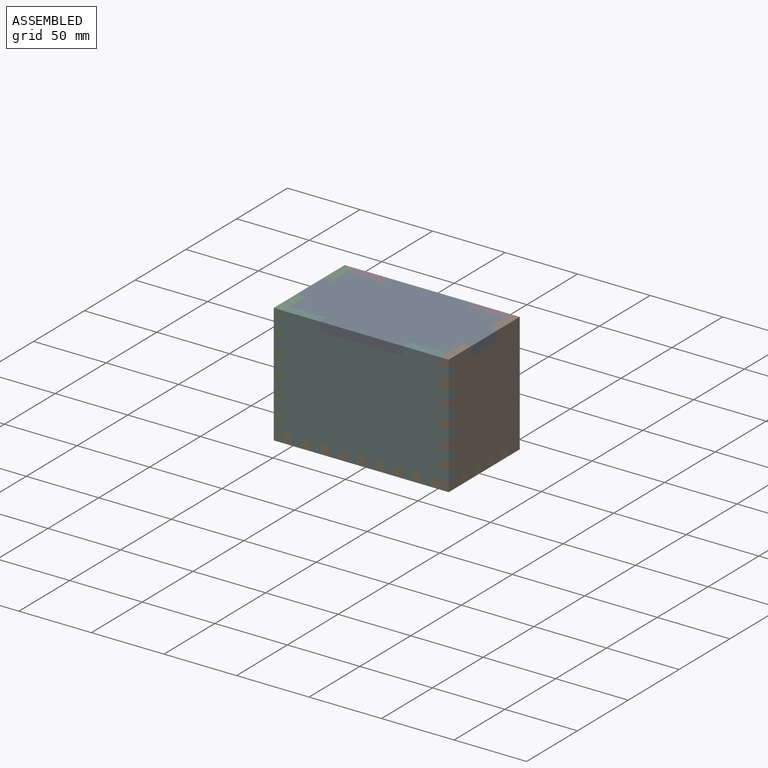
[diagram: assembled view]
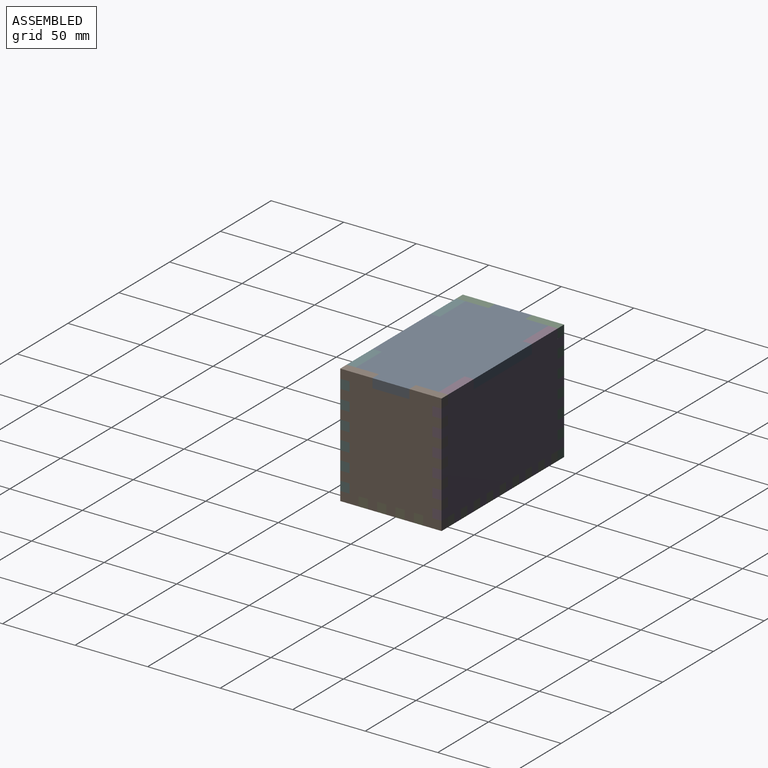
[diagram: assembled view, second angle]
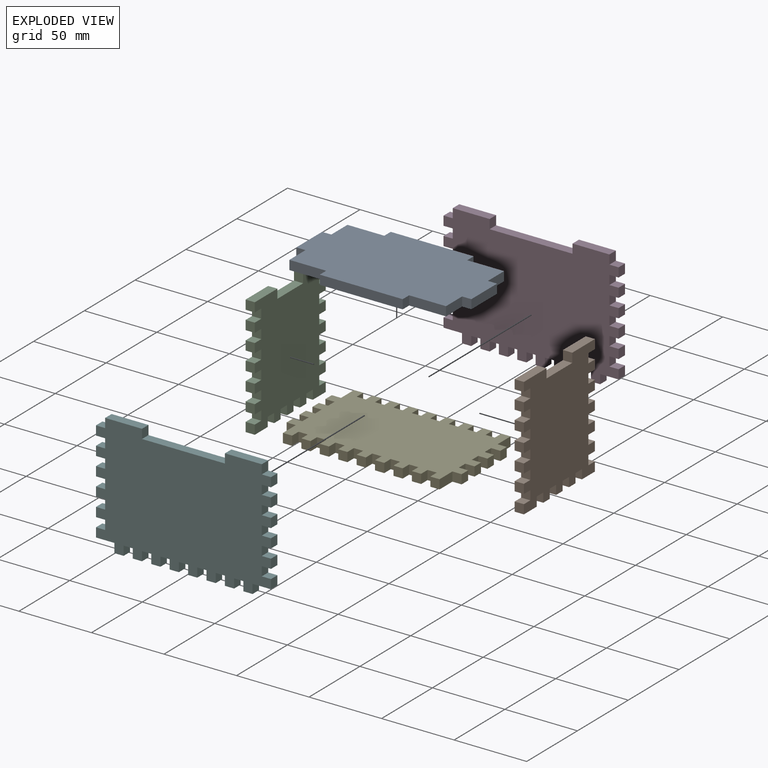
[diagram: exploded view]
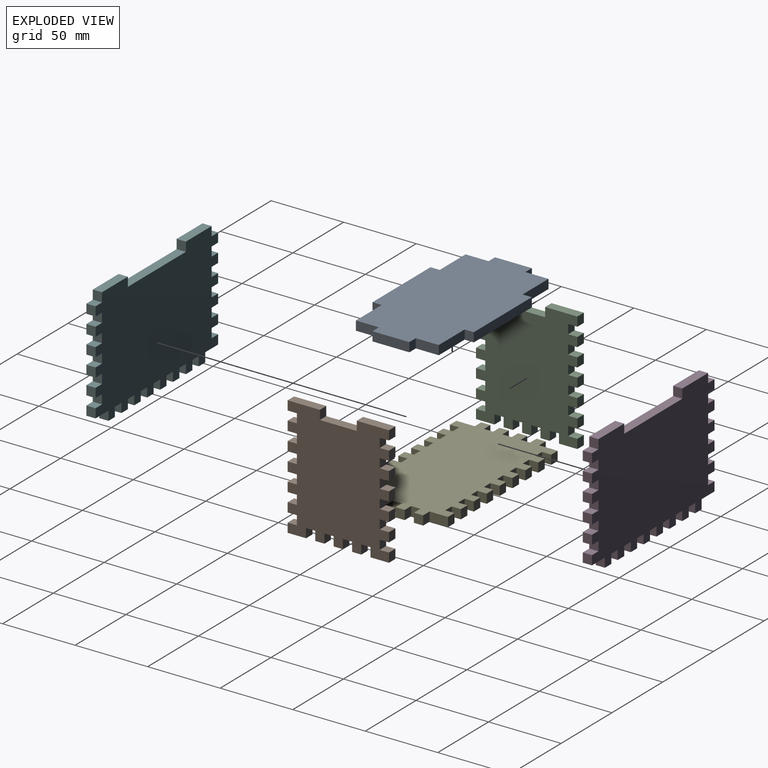
[diagram: exploded view, second angle]
ASSEMBLY  parts=6 mates=5
PART A: 22 faces, bbox 120.7x69.9x6.4 mm
  f0: plane 6.35x6.35mm, normal (-1,0,0), area 40.3mm2, adj f1,f19,f20,f21
  f1: plane 57.15x6.35mm, normal (0,-1,0), area 362.9mm2, adj f0,f2,f20,f21
  f2: plane 6.35x6.35mm, normal (1,0,0), area 40.3mm2, adj f1,f3,f20,f21
  f3: plane 25.4x6.35mm, normal (0,-1,0), area 161.3mm2, adj f2,f4,f20,f21
  f4: plane 15.88x6.35mm, normal (1,0,0), area 100.8mm2, adj f3,f5,f20,f21
  f5: plane 6.35x6.35mm, normal (0,-1,0), area 40.3mm2, adj f4,f6,f20,f21
  f6: plane 25.4x6.35mm, normal (1,0,0), area 161.3mm2, adj f5,f7,f20,f21
  f7: plane 6.35x6.35mm, normal (0,1,0), area 40.3mm2, adj f6,f8,f20,f21
  f8: plane 15.88x6.35mm, normal (1,0,0), area 100.8mm2, adj f7,f9,f20,f21
  f9: plane 25.4x6.35mm, normal (0,1,0), area 161.3mm2, adj f8,f10,f20,f21
  f10: plane 6.35x6.35mm, normal (1,0,0), area 40.3mm2, adj f9,f11,f20,f21
  f11: plane 57.15x6.35mm, normal (0,1,0), area 362.9mm2, adj f10,f12,f20,f21
  f12: plane 6.35x6.35mm, normal (-1,0,0), area 40.3mm2, adj f11,f13,f20,f21
  f13: plane 25.4x6.35mm, normal (0,1,0), area 161.3mm2, adj f12,f14,f20,f21
  f14: plane 15.88x6.35mm, normal (-1,0,0), area 100.8mm2, adj f13,f15,f20,f21
  f15: plane 6.35x6.35mm, normal (0,1,0), area 40.3mm2, adj f14,f16,f20,f21
  f16: plane 25.4x6.35mm, normal (-1,0,0), area 161.3mm2, adj f15,f17,f20,f21
  f17: plane 6.35x6.35mm, normal (0,-1,0), area 40.3mm2, adj f16,f18,f20,f21
  f18: plane 15.88x6.35mm, normal (-1,0,0), area 100.8mm2, adj f17,f19,f20,f21
  f19: plane 25.4x6.35mm, normal (0,-1,0), area 161.3mm2, adj f0,f18,f20,f21
  f20: plane 120.65x69.85mm, normal (0,0,1), area 7217.7mm2, adj f0,f1,f2,f3,f4,f5,f6,f7
  f21: plane 120.65x69.85mm, normal (0,0,-1), area 7217.7mm2, adj f0,f1,f2,f3,f4,f5,f6,f7
PART B: 74 faces, bbox 82.6x69.9x6.4 mm
  f0: plane 6.35x6.35mm, normal (0,-1,0), area 40.3mm2, adj f17,f18,f63,f70
  f1: plane 6.35x6.35mm, normal (0,-1,0), area 40.3mm2, adj f17,f18,f57,f62
  f2: plane 6.35x6.35mm, normal (0,-1,0), area 40.3mm2, adj f17,f18,f51,f56
  f3: plane 6.35x6.35mm, normal (0,-1,0), area 40.3mm2, adj f17,f18,f30,f50
  f4: plane 6.35x6.35mm, normal (0,-1,0), area 40.3mm2, adj f17,f18,f22,f38
  f5: plane 6.35x6.35mm, normal (0,-1,0), area 40.3mm2, adj f17,f18,f29,f39
  f6: plane 6.35x6.35mm, normal (1,0,0), area 40.3mm2, adj f17,f18,f37,f47
  f7: plane 6.35x6.35mm, normal (1,0,0), area 40.3mm2, adj f17,f18,f34,f35
  f8: plane 6.35x6.35mm, normal (1,0,0), area 40.3mm2, adj f17,f18,f25,f32
  f9: plane 12.7x6.35mm, normal (1,0,0), area 80.6mm2, adj f17,f18,f21,f23
  f10: plane 6.35x6.35mm, normal (0,1,0), area 40.3mm2, adj f17,f18,f65,f72
  f11: plane 6.35x6.35mm, normal (0,1,0), area 40.3mm2, adj f17,f18,f59,f66
  f12: plane 6.35x6.35mm, normal (0,1,0), area 40.3mm2, adj f17,f18,f53,f60
  f13: plane 6.35x6.35mm, normal (0,1,0), area 40.3mm2, adj f17,f18,f26,f54
  f14: plane 6.35x6.35mm, normal (0,1,0), area 40.3mm2, adj f16,f17,f18,f42
  f15: plane 6.35x6.35mm, normal (0,1,0), area 40.3mm2, adj f17,f18,f27,f41
  f16: plane 22.23x6.35mm, normal (-1,0,0), area 141.1mm2, adj f14,f17,f18,f44
  f17: plane 82.55x69.85mm, normal (0,0,1), area 4959.7mm2, adj f0,f1,f2,f3,f4,f5,f6,f7
  f18: plane 82.55x69.85mm, normal (0,0,-1), area 4959.7mm2, adj f0,f1,f2,f3,f4,f5,f6,f7
  f19: plane 6.35x6.35mm, normal (0,-1,0), area 40.3mm2, adj f17,f18,f20,f68
  f20: plane 12.7x6.35mm, normal (1,0,0), area 80.6mm2, adj f17,f18,f19,f49
  f21: plane 6.35x6.35mm, normal (0,1,0), area 40.3mm2, adj f9,f17,f18,f71
  f22: plane 22.23x6.35mm, normal (-1,0,0), area 141.1mm2, adj f4,f17,f18,f45
  f23: plane 6.35x6.35mm, normal (0,-1,0), area 40.3mm2, adj f9,f17,f18,f24
  f24: plane 6.35x6.35mm, normal (1,0,0), area 40.3mm2, adj f17,f18,f23,f25
  f25: plane 6.35x6.35mm, normal (0,1,0), area 40.3mm2, adj f8,f17,f18,f24
  f26: plane 6.35x6.35mm, normal (-1,0,0), area 40.3mm2, adj f13,f17,f18,f28
  f27: plane 6.35x6.35mm, normal (1,0,0), area 40.3mm2, adj f15,f17,f18,f28
  f28: plane 6.35x6.35mm, normal (0,1,0), area 40.3mm2, adj f17,f18,f26,f27
  f29: plane 6.35x6.35mm, normal (1,0,0), area 40.3mm2, adj f5,f17,f18,f31
  f30: plane 6.35x6.35mm, normal (-1,0,0), area 40.3mm2, adj f3,f17,f18,f31
  f31: plane 6.35x6.35mm, normal (0,-1,0), area 40.3mm2, adj f17,f18,f29,f30
  f32: plane 6.35x6.35mm, normal (0,-1,0), area 40.3mm2, adj f8,f17,f18,f33
  f33: plane 6.35x6.35mm, normal (1,0,0), area 40.3mm2, adj f17,f18,f32,f34
  f34: plane 6.35x6.35mm, normal (0,1,0), area 40.3mm2, adj f7,f17,f18,f33
  f35: plane 6.35x6.35mm, normal (0,-1,0), area 40.3mm2, adj f7,f17,f18,f36
  f36: plane 6.35x6.35mm, normal (1,0,0), area 40.3mm2, adj f17,f18,f35,f37
  f37: plane 6.35x6.35mm, normal (0,1,0), area 40.3mm2, adj f6,f17,f18,f36
  f38: plane 6.35x6.35mm, normal (1,0,0), area 40.3mm2, adj f4,f17,f18,f40
  f39: plane 6.35x6.35mm, normal (-1,0,0), area 40.3mm2, adj f5,f17,f18,f40
  f40: plane 6.35x6.35mm, normal (0,-1,0), area 40.3mm2, adj f17,f18,f38,f39
  f41: plane 6.35x6.35mm, normal (-1,0,0), area 40.3mm2, adj f15,f17,f18,f43
  f42: plane 6.35x6.35mm, normal (1,0,0), area 40.3mm2, adj f14,f17,f18,f43
  f43: plane 6.35x6.35mm, normal (0,1,0), area 40.3mm2, adj f17,f18,f41,f42
  f44: plane 6.35x6.35mm, normal (0,-1,0), area 40.3mm2, adj f16,f17,f18,f46
  f45: plane 6.35x6.35mm, normal (0,1,0), area 40.3mm2, adj f17,f18,f22,f46
  f46: plane 25.4x6.35mm, normal (-1,0,0), area 161.3mm2, adj f17,f18,f44,f45
  f47: plane 6.35x6.35mm, normal (0,-1,0), area 40.3mm2, adj f6,f17,f18,f48
  f48: plane 6.35x6.35mm, normal (1,0,0), area 40.3mm2, adj f17,f18,f47,f49
  f49: plane 6.35x6.35mm, normal (0,1,0), area 40.3mm2, adj f17,f18,f20,f48
  f50: plane 6.35x6.35mm, normal (1,0,0), area 40.3mm2, adj f3,f17,f18,f52
  f51: plane 6.35x6.35mm, normal (-1,0,0), area 40.3mm2, adj f2,f17,f18,f52
  f52: plane 6.35x6.35mm, normal (0,-1,0), area 40.3mm2, adj f17,f18,f50,f51
  f53: plane 6.35x6.35mm, normal (-1,0,0), area 40.3mm2, adj f12,f17,f18,f55
  f54: plane 6.35x6.35mm, normal (1,0,0), area 40.3mm2, adj f13,f17,f18,f55
  f55: plane 6.35x6.35mm, normal (0,1,0), area 40.3mm2, adj f17,f18,f53,f54
  f56: plane 6.35x6.35mm, normal (1,0,0), area 40.3mm2, adj f2,f17,f18,f58
  f57: plane 6.35x6.35mm, normal (-1,0,0), area 40.3mm2, adj f1,f17,f18,f58
  f58: plane 6.35x6.35mm, normal (0,-1,0), area 40.3mm2, adj f17,f18,f56,f57
  f59: plane 6.35x6.35mm, normal (-1,0,0), area 40.3mm2, adj f11,f17,f18,f61
  f60: plane 6.35x6.35mm, normal (1,0,0), area 40.3mm2, adj f12,f17,f18,f61
  f61: plane 6.35x6.35mm, normal (0,1,0), area 40.3mm2, adj f17,f18,f59,f60
  f62: plane 6.35x6.35mm, normal (1,0,0), area 40.3mm2, adj f1,f17,f18,f64
  f63: plane 6.35x6.35mm, normal (-1,0,0), area 40.3mm2, adj f0,f17,f18,f64
  f64: plane 6.35x6.35mm, normal (0,-1,0), area 40.3mm2, adj f17,f18,f62,f63
  f65: plane 6.35x6.35mm, normal (-1,0,0), area 40.3mm2, adj f10,f17,f18,f67
  f66: plane 6.35x6.35mm, normal (1,0,0), area 40.3mm2, adj f11,f17,f18,f67
  f67: plane 6.35x6.35mm, normal (0,1,0), area 40.3mm2, adj f17,f18,f65,f66
  f68: plane 6.35x6.35mm, normal (-1,0,0), area 40.3mm2, adj f17,f18,f19,f69
  f69: plane 6.35x6.35mm, normal (0,-1,0), area 40.3mm2, adj f17,f18,f68,f70
  f70: plane 6.35x6.35mm, normal (1,0,0), area 40.3mm2, adj f0,f17,f18,f69
  f71: plane 6.35x6.35mm, normal (-1,0,0), area 40.3mm2, adj f17,f18,f21,f73
  f72: plane 6.35x6.35mm, normal (1,0,0), area 40.3mm2, adj f10,f17,f18,f73
  f73: plane 6.35x6.35mm, normal (0,1,0), area 40.3mm2, adj f17,f18,f71,f72
PART C: same geometry as B
PART D: 86 faces, bbox 120.7x82.6x6.4 mm
  f0: plane 25.4x6.35mm, normal (0,1,0), area 161.3mm2, adj f14,f15,f55,f61
  f1: plane 25.4x6.35mm, normal (0,1,0), area 161.3mm2, adj f14,f15,f57,f59
  f2: plane 6.35x6.35mm, normal (-1,0,0), area 40.3mm2, adj f14,f15,f65,f84
  f3: plane 6.35x6.35mm, normal (-1,0,0), area 40.3mm2, adj f14,f15,f78,f83
  f4: plane 6.35x6.35mm, normal (-1,0,0), area 40.3mm2, adj f14,f15,f51,f66
  f5: plane 6.35x6.35mm, normal (-1,0,0), area 40.3mm2, adj f14,f15,f52,f60
  f6: plane 6.35x6.35mm, normal (-1,0,0), area 40.3mm2, adj f14,f15,f53,f77
  f7: plane 6.35x6.35mm, normal (-1,0,0), area 40.3mm2, adj f14,f15,f33,f49
  f8: plane 6.35x6.35mm, normal (1,0,0), area 40.3mm2, adj f14,f15,f63,f80
  f9: plane 6.35x6.35mm, normal (1,0,0), area 40.3mm2, adj f14,f15,f74,f81
  f10: plane 6.35x6.35mm, normal (1,0,0), area 40.3mm2, adj f14,f15,f36,f71
  f11: plane 6.35x6.35mm, normal (1,0,0), area 40.3mm2, adj f14,f15,f68,f72
  f12: plane 6.35x6.35mm, normal (1,0,0), area 40.3mm2, adj f14,f15,f62,f69
  f13: plane 6.35x6.35mm, normal (1,0,0), area 40.3mm2, adj f14,f15,f58,f75
  f14: plane 120.65x82.55mm, normal (0,0,1), area 8669.3mm2, adj f0,f1,f2,f3,f4,f5,f6,f7
  f15: plane 120.65x82.55mm, normal (0,0,-1), area 8669.3mm2, adj f0,f1,f2,f3,f4,f5,f6,f7
  f16: plane 6.35x6.35mm, normal (0,-1,0), area 40.3mm2, adj f14,f15,f43,f47
  f17: plane 6.35x6.35mm, normal (0,-1,0), area 40.3mm2, adj f14,f15,f40,f44
  f18: plane 6.35x6.35mm, normal (0,-1,0), area 40.3mm2, adj f14,f15,f37,f41
  f19: plane 6.35x6.35mm, normal (0,-1,0), area 40.3mm2, adj f14,f15,f27,f38
  f20: plane 6.35x6.35mm, normal (0,-1,0), area 40.3mm2, adj f14,f15,f24,f34
  f21: plane 6.35x6.35mm, normal (0,-1,0), area 40.3mm2, adj f14,f15,f31,f35
  f22: plane 6.35x6.35mm, normal (0,-1,0), area 40.3mm2, adj f14,f15,f28,f30
  f23: plane 6.35x6.35mm, normal (0,-1,0), area 40.3mm2, adj f14,f15,f25,f46
  f24: plane 6.35x6.35mm, normal (1,0,0), area 40.3mm2, adj f14,f15,f20,f26
  f25: plane 6.35x6.35mm, normal (-1,0,0), area 40.3mm2, adj f14,f15,f23,f26
  f26: plane 6.35x6.35mm, normal (0,-1,0), area 40.3mm2, adj f14,f15,f24,f25
  f27: plane 6.35x6.35mm, normal (1,0,0), area 40.3mm2, adj f14,f15,f19,f29
  f28: plane 6.35x6.35mm, normal (-1,0,0), area 40.3mm2, adj f14,f15,f22,f29
  f29: plane 6.35x6.35mm, normal (0,-1,0), area 40.3mm2, adj f14,f15,f27,f28
  f30: plane 6.35x6.35mm, normal (1,0,0), area 40.3mm2, adj f14,f15,f22,f32
  f31: plane 6.35x6.35mm, normal (-1,0,0), area 40.3mm2, adj f14,f15,f21,f32
  f32: plane 6.35x6.35mm, normal (0,-1,0), area 40.3mm2, adj f14,f15,f30,f31
  f33: plane 12.7x6.35mm, normal (0,-1,0), area 80.6mm2, adj f7,f14,f15,f34
  f34: plane 6.35x6.35mm, normal (-1,0,0), area 40.3mm2, adj f14,f15,f20,f33
  f35: plane 6.35x6.35mm, normal (1,0,0), area 40.3mm2, adj f14,f15,f21,f36
  f36: plane 12.7x6.35mm, normal (0,-1,0), area 80.6mm2, adj f10,f14,f15,f35
  f37: plane 6.35x6.35mm, normal (1,0,0), area 40.3mm2, adj f14,f15,f18,f39
  f38: plane 6.35x6.35mm, normal (-1,0,0), area 40.3mm2, adj f14,f15,f19,f39
  f39: plane 6.35x6.35mm, normal (0,-1,0), area 40.3mm2, adj f14,f15,f37,f38
  f40: plane 6.35x6.35mm, normal (1,0,0), area 40.3mm2, adj f14,f15,f17,f42
  f41: plane 6.35x6.35mm, normal (-1,0,0), area 40.3mm2, adj f14,f15,f18,f42
  f42: plane 6.35x6.35mm, normal (0,-1,0), area 40.3mm2, adj f14,f15,f40,f41
  f43: plane 6.35x6.35mm, normal (1,0,0), area 40.3mm2, adj f14,f15,f16,f45
  f44: plane 6.35x6.35mm, normal (-1,0,0), area 40.3mm2, adj f14,f15,f17,f45
  f45: plane 6.35x6.35mm, normal (0,-1,0), area 40.3mm2, adj f14,f15,f43,f44
  f46: plane 6.35x6.35mm, normal (1,0,0), area 40.3mm2, adj f14,f15,f23,f48
  f47: plane 6.35x6.35mm, normal (-1,0,0), area 40.3mm2, adj f14,f15,f16,f48
  f48: plane 6.35x6.35mm, normal (0,-1,0), area 40.3mm2, adj f14,f15,f46,f47
  f49: plane 6.35x6.35mm, normal (0,1,0), area 40.3mm2, adj f7,f14,f15,f50
  f50: plane 6.35x6.35mm, normal (-1,0,0), area 40.3mm2, adj f14,f15,f49,f51
  f51: plane 6.35x6.35mm, normal (0,-1,0), area 40.3mm2, adj f4,f14,f15,f50
  f52: plane 6.35x6.35mm, normal (0,-1,0), area 40.3mm2, adj f5,f14,f15,f54
  f53: plane 6.35x6.35mm, normal (0,1,0), area 40.3mm2, adj f6,f14,f15,f54
  f54: plane 6.35x6.35mm, normal (-1,0,0), area 40.3mm2, adj f14,f15,f52,f53
  f55: plane 6.35x6.35mm, normal (1,0,0), area 40.3mm2, adj f0,f14,f15,f56
  f56: plane 57.15x6.35mm, normal (0,1,0), area 362.9mm2, adj f14,f15,f55,f57
  f57: plane 6.35x6.35mm, normal (-1,0,0), area 40.3mm2, adj f1,f14,f15,f56
  f58: plane 6.35x6.35mm, normal (0,1,0), area 40.3mm2, adj f13,f14,f15,f59
  f59: plane 6.35x6.35mm, normal (1,0,0), area 40.3mm2, adj f1,f14,f15,f58
  f60: plane 6.35x6.35mm, normal (0,1,0), area 40.3mm2, adj f5,f14,f15,f61
  f61: plane 6.35x6.35mm, normal (-1,0,0), area 40.3mm2, adj f0,f14,f15,f60
  f62: plane 6.35x6.35mm, normal (0,1,0), area 40.3mm2, adj f12,f14,f15,f64
  f63: plane 6.35x6.35mm, normal (0,-1,0), area 40.3mm2, adj f8,f14,f15,f64
  f64: plane 6.35x6.35mm, normal (1,0,0), area 40.3mm2, adj f14,f15,f62,f63
  f65: plane 6.35x6.35mm, normal (0,-1,0), area 40.3mm2, adj f2,f14,f15,f67
  f66: plane 6.35x6.35mm, normal (0,1,0), area 40.3mm2, adj f4,f14,f15,f67
  f67: plane 6.35x6.35mm, normal (-1,0,0), area 40.3mm2, adj f14,f15,f65,f66
  f68: plane 6.35x6.35mm, normal (0,1,0), area 40.3mm2, adj f11,f14,f15,f70
  f69: plane 6.35x6.35mm, normal (0,-1,0), area 40.3mm2, adj f12,f14,f15,f70
  f70: plane 6.35x6.35mm, normal (1,0,0), area 40.3mm2, adj f14,f15,f68,f69
  f71: plane 6.35x6.35mm, normal (0,1,0), area 40.3mm2, adj f10,f14,f15,f73
  f72: plane 6.35x6.35mm, normal (0,-1,0), area 40.3mm2, adj f11,f14,f15,f73
  f73: plane 6.35x6.35mm, normal (1,0,0), area 40.3mm2, adj f14,f15,f71,f72
  f74: plane 6.35x6.35mm, normal (0,1,0), area 40.3mm2, adj f9,f14,f15,f76
  f75: plane 6.35x6.35mm, normal (0,-1,0), area 40.3mm2, adj f13,f14,f15,f76
  f76: plane 6.35x6.35mm, normal (1,0,0), area 40.3mm2, adj f14,f15,f74,f75
  f77: plane 6.35x6.35mm, normal (0,-1,0), area 40.3mm2, adj f6,f14,f15,f79
  f78: plane 6.35x6.35mm, normal (0,1,0), area 40.3mm2, adj f3,f14,f15,f79
  f79: plane 6.35x6.35mm, normal (-1,0,0), area 40.3mm2, adj f14,f15,f77,f78
  f80: plane 6.35x6.35mm, normal (0,1,0), area 40.3mm2, adj f8,f14,f15,f82
  f81: plane 6.35x6.35mm, normal (0,-1,0), area 40.3mm2, adj f9,f14,f15,f82
  f82: plane 6.35x6.35mm, normal (1,0,0), area 40.3mm2, adj f14,f15,f80,f81
  f83: plane 6.35x6.35mm, normal (0,-1,0), area 40.3mm2, adj f3,f14,f15,f85
  f84: plane 6.35x6.35mm, normal (0,1,0), area 40.3mm2, adj f2,f14,f15,f85
  f85: plane 6.35x6.35mm, normal (-1,0,0), area 40.3mm2, adj f14,f15,f83,f84
PART E: 102 faces, bbox 120.7x69.9x6.4 mm
  f0: plane 6.35x6.35mm, normal (0,-1,0), area 40.3mm2, adj f26,f27,f96,f101
  f1: plane 6.35x6.35mm, normal (0,-1,0), area 40.3mm2, adj f26,f27,f83,f98
  f2: plane 6.35x6.35mm, normal (0,-1,0), area 40.3mm2, adj f26,f27,f65,f95
  f3: plane 6.35x6.35mm, normal (0,-1,0), area 40.3mm2, adj f26,f27,f91,f93
  f4: plane 6.35x6.35mm, normal (0,-1,0), area 40.3mm2, adj f26,f27,f78,f86
  f5: plane 6.35x6.35mm, normal (0,-1,0), area 40.3mm2, adj f26,f27,f82,f92
  f6: plane 6.35x6.35mm, normal (0,-1,0), area 40.3mm2, adj f26,f27,f80,f99
  f7: plane 6.35x6.35mm, normal (0,-1,0), area 40.3mm2, adj f26,f27,f38,f64
  f8: plane 6.35x6.35mm, normal (0,-1,0), area 40.3mm2, adj f26,f27,f53,f84
  f9: plane 6.35x6.35mm, normal (1,0,0), area 40.3mm2, adj f26,f27,f33,f52
  f10: plane 6.35x6.35mm, normal (1,0,0), area 40.3mm2, adj f26,f27,f42,f46
  f11: plane 6.35x6.35mm, normal (1,0,0), area 40.3mm2, adj f26,f27,f37,f40
  f12: plane 6.35x6.35mm, normal (1,0,0), area 40.3mm2, adj f26,f27,f31,f48
  f13: plane 6.35x6.35mm, normal (0,1,0), area 40.3mm2, adj f26,f27,f28,f76
  f14: plane 6.35x6.35mm, normal (0,1,0), area 40.3mm2, adj f26,f27,f73,f75
  f15: plane 6.35x6.35mm, normal (0,1,0), area 40.3mm2, adj f26,f27,f70,f72
  f16: plane 6.35x6.35mm, normal (0,1,0), area 40.3mm2, adj f26,f27,f67,f69
  f17: plane 6.35x6.35mm, normal (0,1,0), area 40.3mm2, adj f26,f27,f57,f61
  f18: plane 6.35x6.35mm, normal (0,1,0), area 40.3mm2, adj f26,f27,f54,f58
  f19: plane 6.35x6.35mm, normal (0,1,0), area 40.3mm2, adj f26,f27,f55,f66
  f20: plane 6.35x6.35mm, normal (0,1,0), area 40.3mm2, adj f26,f27,f36,f60
  f21: plane 6.35x6.35mm, normal (0,1,0), area 40.3mm2, adj f26,f27,f29,f35
  f22: plane 6.35x6.35mm, normal (-1,0,0), area 40.3mm2, adj f26,f27,f34,f87
  f23: plane 6.35x6.35mm, normal (-1,0,0), area 40.3mm2, adj f26,f27,f44,f49
  f24: plane 6.35x6.35mm, normal (-1,0,0), area 40.3mm2, adj f26,f27,f43,f88
  f25: plane 6.35x6.35mm, normal (-1,0,0), area 40.3mm2, adj f26,f27,f39,f50
  f26: plane 120.65x69.85mm, normal (0,0,1), area 7217.7mm2, adj f0,f1,f2,f3,f4,f5,f6,f7
  f27: plane 120.65x69.85mm, normal (0,0,-1), area 7217.7mm2, adj f0,f1,f2,f3,f4,f5,f6,f7
  f28: plane 6.35x6.35mm, normal (-1,0,0), area 40.3mm2, adj f13,f26,f27,f30
  f29: plane 6.35x6.35mm, normal (1,0,0), area 40.3mm2, adj f21,f26,f27,f30
  f30: plane 6.35x6.35mm, normal (0,1,0), area 40.3mm2, adj f26,f27,f28,f29
  f31: plane 6.35x6.35mm, normal (0,-1,0), area 40.3mm2, adj f12,f26,f27,f32
  f32: plane 6.35x6.35mm, normal (1,0,0), area 40.3mm2, adj f26,f27,f31,f33
  f33: plane 6.35x6.35mm, normal (0,1,0), area 40.3mm2, adj f9,f26,f27,f32
  f34: plane 6.35x6.35mm, normal (0,1,0), area 40.3mm2, adj f22,f26,f27,f35
  f35: plane 12.7x6.35mm, normal (-1,0,0), area 80.6mm2, adj f21,f26,f27,f34
  f36: plane 12.7x6.35mm, normal (1,0,0), area 80.6mm2, adj f20,f26,f27,f37
  f37: plane 6.35x6.35mm, normal (0,1,0), area 40.3mm2, adj f11,f26,f27,f36
  f38: plane 12.7x6.35mm, normal (-1,0,0), area 80.6mm2, adj f7,f26,f27,f39
  f39: plane 6.35x6.35mm, normal (0,-1,0), area 40.3mm2, adj f25,f26,f27,f38
  f40: plane 6.35x6.35mm, normal (0,-1,0), area 40.3mm2, adj f11,f26,f27,f41
  f41: plane 6.35x6.35mm, normal (1,0,0), area 40.3mm2, adj f26,f27,f40,f42
  f42: plane 6.35x6.35mm, normal (0,1,0), area 40.3mm2, adj f10,f26,f27,f41
  f43: plane 6.35x6.35mm, normal (0,-1,0), area 40.3mm2, adj f24,f26,f27,f45
  f44: plane 6.35x6.35mm, normal (0,1,0), area 40.3mm2, adj f23,f26,f27,f45
  f45: plane 6.35x6.35mm, normal (-1,0,0), area 40.3mm2, adj f26,f27,f43,f44
  f46: plane 6.35x6.35mm, normal (0,-1,0), area 40.3mm2, adj f10,f26,f27,f47
  f47: plane 6.35x6.35mm, normal (1,0,0), area 40.3mm2, adj f26,f27,f46,f48
  f48: plane 6.35x6.35mm, normal (0,1,0), area 40.3mm2, adj f12,f26,f27,f47
  f49: plane 6.35x6.35mm, normal (0,-1,0), area 40.3mm2, adj f23,f26,f27,f51
  f50: plane 6.35x6.35mm, normal (0,1,0), area 40.3mm2, adj f25,f26,f27,f51
  f51: plane 6.35x6.35mm, normal (-1,0,0), area 40.3mm2, adj f26,f27,f49,f50
  f52: plane 6.35x6.35mm, normal (0,-1,0), area 40.3mm2, adj f9,f26,f27,f53
  f53: plane 12.7x6.35mm, normal (1,0,0), area 80.6mm2, adj f8,f26,f27,f52
  f54: plane 6.35x6.35mm, normal (-1,0,0), area 40.3mm2, adj f18,f26,f27,f56
  f55: plane 6.35x6.35mm, normal (1,0,0), area 40.3mm2, adj f19,f26,f27,f56
  f56: plane 6.35x6.35mm, normal (0,1,0), area 40.3mm2, adj f26,f27,f54,f55
  f57: plane 6.35x6.35mm, normal (-1,0,0), area 40.3mm2, adj f17,f26,f27,f59
  f58: plane 6.35x6.35mm, normal (1,0,0), area 40.3mm2, adj f18,f26,f27,f59
  f59: plane 6.35x6.35mm, normal (0,1,0), area 40.3mm2, adj f26,f27,f57,f58
  f60: plane 6.35x6.35mm, normal (-1,0,0), area 40.3mm2, adj f20,f26,f27,f62
  f61: plane 6.35x6.35mm, normal (1,0,0), area 40.3mm2, adj f17,f26,f27,f62
  f62: plane 6.35x6.35mm, normal (0,1,0), area 40.3mm2, adj f26,f27,f60,f61
  f63: plane 6.35x6.35mm, normal (0,-1,0), area 40.3mm2, adj f26,f27,f64,f65
  f64: plane 6.35x6.35mm, normal (1,0,0), area 40.3mm2, adj f7,f26,f27,f63
  f65: plane 6.35x6.35mm, normal (-1,0,0), area 40.3mm2, adj f2,f26,f27,f63
  f66: plane 6.35x6.35mm, normal (-1,0,0), area 40.3mm2, adj f19,f26,f27,f68
  f67: plane 6.35x6.35mm, normal (1,0,0), area 40.3mm2, adj f16,f26,f27,f68
  f68: plane 6.35x6.35mm, normal (0,1,0), area 40.3mm2, adj f26,f27,f66,f67
  f69: plane 6.35x6.35mm, normal (-1,0,0), area 40.3mm2, adj f16,f26,f27,f71
  f70: plane 6.35x6.35mm, normal (1,0,0), area 40.3mm2, adj f15,f26,f27,f71
  f71: plane 6.35x6.35mm, normal (0,1,0), area 40.3mm2, adj f26,f27,f69,f70
  f72: plane 6.35x6.35mm, normal (-1,0,0), area 40.3mm2, adj f15,f26,f27,f74
  f73: plane 6.35x6.35mm, normal (1,0,0), area 40.3mm2, adj f14,f26,f27,f74
  f74: plane 6.35x6.35mm, normal (0,1,0), area 40.3mm2, adj f26,f27,f72,f73
  f75: plane 6.35x6.35mm, normal (-1,0,0), area 40.3mm2, adj f14,f26,f27,f77
  f76: plane 6.35x6.35mm, normal (1,0,0), area 40.3mm2, adj f13,f26,f27,f77
  f77: plane 6.35x6.35mm, normal (0,1,0), area 40.3mm2, adj f26,f27,f75,f76
  f78: plane 6.35x6.35mm, normal (-1,0,0), area 40.3mm2, adj f4,f26,f27,f79
  f79: plane 6.35x6.35mm, normal (0,-1,0), area 40.3mm2, adj f26,f27,f78,f80
  f80: plane 6.35x6.35mm, normal (1,0,0), area 40.3mm2, adj f6,f26,f27,f79
  f81: plane 6.35x6.35mm, normal (0,-1,0), area 40.3mm2, adj f26,f27,f82,f83
  f82: plane 6.35x6.35mm, normal (1,0,0), area 40.3mm2, adj f5,f26,f27,f81
  f83: plane 6.35x6.35mm, normal (-1,0,0), area 40.3mm2, adj f1,f26,f27,f81
  f84: plane 6.35x6.35mm, normal (-1,0,0), area 40.3mm2, adj f8,f26,f27,f85
  f85: plane 6.35x6.35mm, normal (0,-1,0), area 40.3mm2, adj f26,f27,f84,f86
  f86: plane 6.35x6.35mm, normal (1,0,0), area 40.3mm2, adj f4,f26,f27,f85
  f87: plane 6.35x6.35mm, normal (0,-1,0), area 40.3mm2, adj f22,f26,f27,f89
  f88: plane 6.35x6.35mm, normal (0,1,0), area 40.3mm2, adj f24,f26,f27,f89
  f89: plane 6.35x6.35mm, normal (-1,0,0), area 40.3mm2, adj f26,f27,f87,f88
  f90: plane 6.35x6.35mm, normal (0,-1,0), area 40.3mm2, adj f26,f27,f91,f92
  f91: plane 6.35x6.35mm, normal (1,0,0), area 40.3mm2, adj f3,f26,f27,f90
  f92: plane 6.35x6.35mm, normal (-1,0,0), area 40.3mm2, adj f5,f26,f27,f90
  f93: plane 6.35x6.35mm, normal (-1,0,0), area 40.3mm2, adj f3,f26,f27,f94
  f94: plane 6.35x6.35mm, normal (0,-1,0), area 40.3mm2, adj f26,f27,f93,f95
  f95: plane 6.35x6.35mm, normal (1,0,0), area 40.3mm2, adj f2,f26,f27,f94
  f96: plane 6.35x6.35mm, normal (-1,0,0), area 40.3mm2, adj f0,f26,f27,f97
  f97: plane 6.35x6.35mm, normal (0,-1,0), area 40.3mm2, adj f26,f27,f96,f98
  f98: plane 6.35x6.35mm, normal (1,0,0), area 40.3mm2, adj f1,f26,f27,f97
  f99: plane 6.35x6.35mm, normal (-1,0,0), area 40.3mm2, adj f6,f26,f27,f100
  f100: plane 6.35x6.35mm, normal (0,-1,0), area 40.3mm2, adj f26,f27,f99,f101
  f101: plane 6.35x6.35mm, normal (1,0,0), area 40.3mm2, adj f0,f26,f27,f100
PART F: same geometry as D
PLACE A t=(-28.27,90.06,72.91)mm
PLACE B rot(axis=(0.71,0,-0.71),180deg) t=(60.63,1.49,-100.92)mm
PLACE C rot(axis=(0,1,0),90deg) t=(-60.02,-1.3,-100.92)mm
PLACE D rot(axis=(1,0,0),90deg) t=(-178.24,35.02,32.65)mm
PLACE E t=(0.3,0.1,-3.29)mm
PLACE F rot(axis=(0,0.71,0.71),180deg) t=(178.85,-34.83,32.65)mm
MATE fastened C.f17 <-> E.f38  axis (1,0,0) through (-53.67,-34.83,-3.29)mm
MATE fastened F.f14 <-> E.f85  axis (0,1,0) through (47.93,-28.48,-3.29)mm
MATE fastened B.f17 <-> E.f36  axis (-1,0,0) through (54.28,35.02,-3.29)mm
MATE fastened D.f14 <-> E.f30  axis (0,-1,0) through (-47.32,28.67,-3.29)mm
MATE fastened A.f21 <-> C.f46  axis (0,0,-1) through (-60.02,-12.6,72.91)mm
